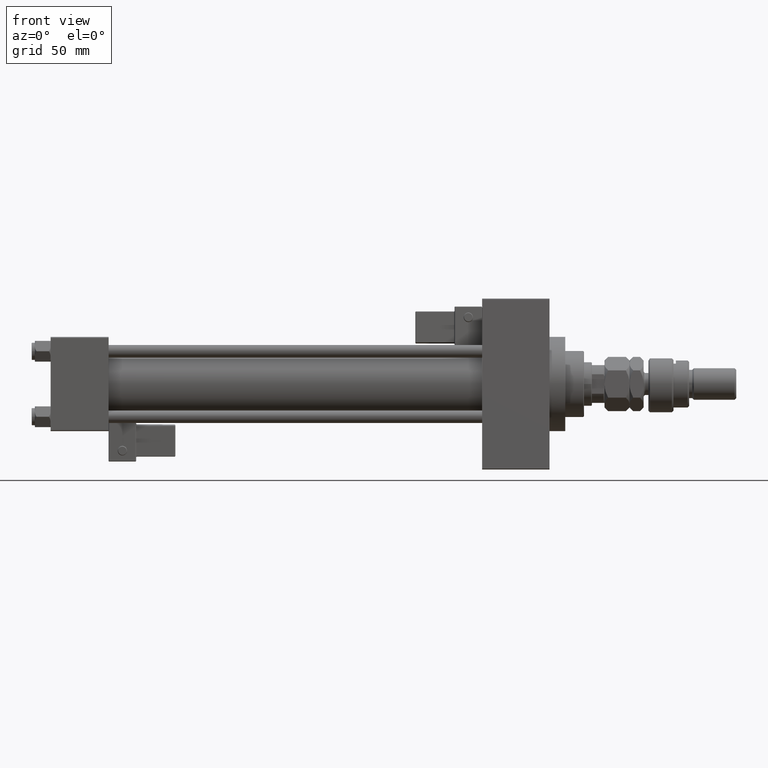
[diagram: clean part render]
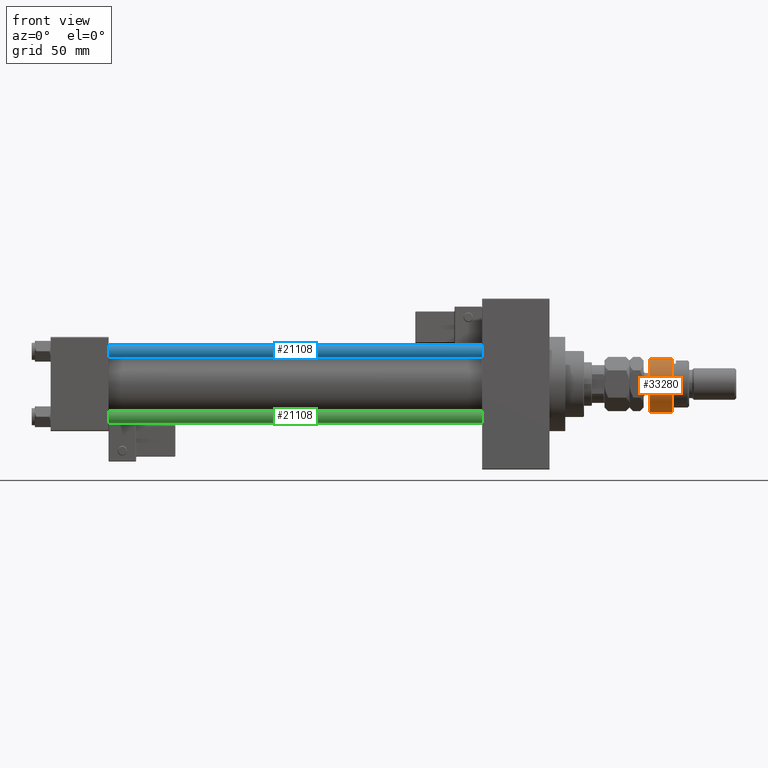
[diagram: same view with three faces highlighted in distinct colors, each labeled with its STEP entity id]
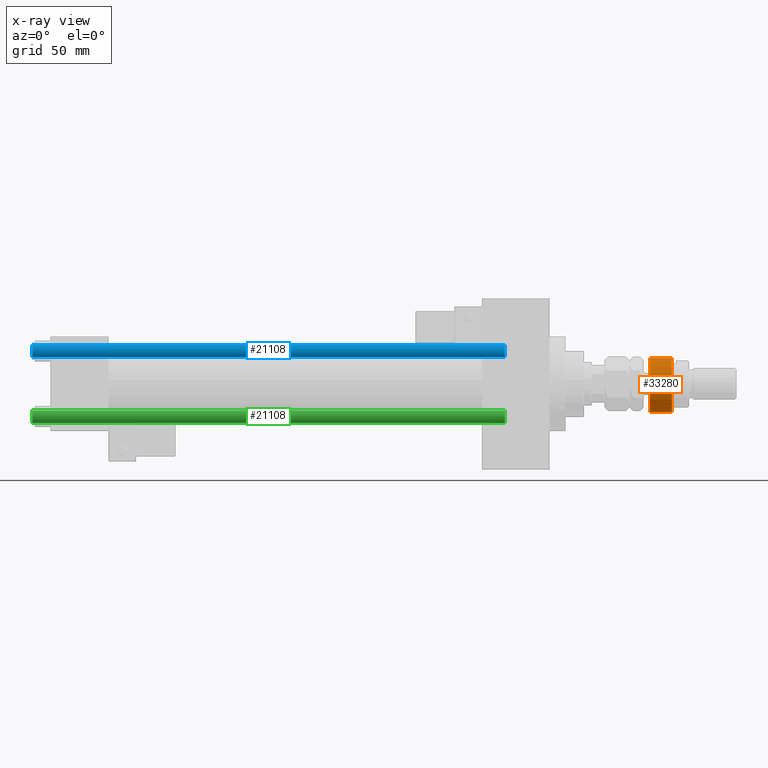
[diagram: x-ray of the same camera — body ghosted, the three highlighted faces saturated]
A machine part, front view with three faces highlighted in distinct colors.
The next image is the same camera in x-ray (body ghosted, the three faces saturated) — at least one of them is partly hidden behind the body in this view.
Their STEP definitions:

[orange] entity #33280 — the highlighted cylindrical surface (edge-blend (fillet) strip) has radius 18 mm, axis along (-1, -0, 0).
#487 = DIRECTION ( 'NONE',  ( -0.000000000000000000, -0.000000000000000000, 1.000000000000000000 ) ) ;
#1001 = CARTESIAN_POINT ( 'NONE',  ( 0.000000000000000000, 0.000000000000000000, 1.000000000000011324 ) ) ;
#2373 = ORIENTED_EDGE ( 'NONE', *, *, #43008, .T. ) ;
#3588 = DIRECTION ( 'NONE',  ( 1.000000000000000000, 0.000000000000000000, 0.000000000000000000 ) ) ;
#3994 = VERTEX_POINT ( 'NONE', #5558 ) ;
#4075 = LINE ( 'NONE', #52472, #25803 ) ;
#5335 = DIRECTION ( 'NONE',  ( -0.000000000000000000, -0.000000000000000000, -1.000000000000000000 ) ) ;
#5377 = CARTESIAN_POINT ( 'NONE',  ( 0.000000000000000000, 0.000000000000000000, 1.000000000000011324 ) ) ;
#5558 = CARTESIAN_POINT ( 'NONE',  ( -16.36306817195357155, 7.500000000000000000, 1.000000000000011324 ) ) ;
#7067 = CARTESIAN_POINT ( 'NONE',  ( 0.000000000000000000, 0.000000000000000000, 14.99999999999999645 ) ) ;
#7327 = DIRECTION ( 'NONE',  ( 0.000000000000000000, 0.000000000000000000, -1.000000000000000000 ) ) ;
#7967 = CARTESIAN_POINT ( 'NONE',  ( -16.36306817195357155, 7.500000000000000000, 14.99999999999999645 ) ) ;
#10389 = CARTESIAN_POINT ( 'NONE',  ( -16.36306817195357155, -7.500000000000000000, 1.000000000000011324 ) ) ;
#13651 = EDGE_CURVE ( 'NONE', #38597, #3994, #4075, .T. ) ;
#14104 = ORIENTED_EDGE ( 'NONE', *, *, #26042, .T. ) ;
#14945 = CIRCLE ( 'NONE', #48932, 18.00000000000000000 ) ;
#15022 = VECTOR ( 'NONE', #25085, 1000.000000000000000 ) ;
#17640 = LINE ( 'NONE', #25870, #15022 ) ;
#18761 = ORIENTED_EDGE ( 'NONE', *, *, #22745, .T. ) ;
#22331 = AXIS2_PLACEMENT_3D ( 'NONE', #29564, #5335, #37787 ) ;
#22416 = DIRECTION ( 'NONE',  ( -0.000000000000000000, -0.000000000000000000, 1.000000000000000000 ) ) ;
#22745 = EDGE_CURVE ( 'NONE', #27725, #28508, #17640, .T. ) ;
#23485 = CIRCLE ( 'NONE', #29413, 18.00000000000000000 ) ;
#23782 = DIRECTION ( 'NONE',  ( -0.000000000000000000, -0.000000000000000000, -1.000000000000000000 ) ) ;
#25085 = DIRECTION ( 'NONE',  ( -0.000000000000000000, -0.000000000000000000, -1.000000000000000000 ) ) ;
#25183 = CARTESIAN_POINT ( 'NONE',  ( -16.36306817195357155, -7.500000000000000000, 14.99999999999999645 ) ) ;
#25803 = VECTOR ( 'NONE', #23782, 1000.000000000000000 ) ;
#25870 = CARTESIAN_POINT ( 'NONE',  ( -16.36306817195357155, -7.500000000000000000, 17.50000000000000000 ) ) ;
#26042 = EDGE_CURVE ( 'NONE', #34195, #3994, #35483, .T. ) ;
#27725 = VERTEX_POINT ( 'NONE', #25183 ) ;
#28508 = VERTEX_POINT ( 'NONE', #10389 ) ;
#29413 = AXIS2_PLACEMENT_3D ( 'NONE', #5377, #22416, #46051 ) ;
#29564 = CARTESIAN_POINT ( 'NONE',  ( 0.000000000000000000, 0.000000000000000000, 16.00000000000000000 ) ) ;
#31082 = CARTESIAN_POINT ( 'NONE',  ( 18.00000000000000000, 0.000000000000000000, 1.000000000000011324 ) ) ;
#33280 = ADVANCED_FACE ( 'NONE', ( #33534 ), #49751, .T. ) ;
#33534 = FACE_OUTER_BOUND ( 'NONE', #36851, .T. ) ;
#34195 = VERTEX_POINT ( 'NONE', #31082 ) ;
#35080 = ORIENTED_EDGE ( 'NONE', *, *, #13651, .F. ) ;
#35483 = CIRCLE ( 'NONE', #46580, 18.00000000000000000 ) ;
#36851 = EDGE_LOOP ( 'NONE', ( #35080, #2373, #18761, #41083, #14104 ) ) ;
#37787 = DIRECTION ( 'NONE',  ( -1.000000000000000000, 0.000000000000000000, 0.000000000000000000 ) ) ;
#38597 = VERTEX_POINT ( 'NONE', #7967 ) ;
#41083 = ORIENTED_EDGE ( 'NONE', *, *, #43400, .T. ) ;
#43008 = EDGE_CURVE ( 'NONE', #38597, #27725, #14945, .T. ) ;
#43400 = EDGE_CURVE ( 'NONE', #28508, #34195, #23485, .T. ) ;
#45926 = DIRECTION ( 'NONE',  ( 1.000000000000000000, 0.000000000000000000, 0.000000000000000000 ) ) ;
#46051 = DIRECTION ( 'NONE',  ( 1.000000000000000000, 0.000000000000000000, 0.000000000000000000 ) ) ;
#46580 = AXIS2_PLACEMENT_3D ( 'NONE', #1001, #487, #45926 ) ;
#48932 = AXIS2_PLACEMENT_3D ( 'NONE', #7067, #7327, #3588 ) ;
#49751 = CYLINDRICAL_SURFACE ( 'NONE', #22331, 18.00000000000000000 ) ;
#52472 = CARTESIAN_POINT ( 'NONE',  ( -16.36306817195357155, 7.500000000000000000, 17.50000000000000000 ) ) ;

[blue] entity #21108 — the highlighted cylindrical surface (edge-blend (fillet) strip) has radius 4 mm, axis along (1, 0, 0).
#473 = VECTOR ( 'NONE', #43873, 1000.000000000000000 ) ;
#845 = EDGE_CURVE ( 'NONE', #14993, #40139, #36478, .T. ) ;
#3273 = CARTESIAN_POINT ( 'NONE',  ( -4.000000000000000000, 0.000000000000000000, 0.5000000000000559552 ) ) ;
#3393 = CARTESIAN_POINT ( 'NONE',  ( 0.000000000000000000, 0.000000000000000000, 302.0000000000000000 ) ) ;
#4063 = AXIS2_PLACEMENT_3D ( 'NONE', #31059, #26272, #16391 ) ;
#7391 = FACE_OUTER_BOUND ( 'NONE', #38830, .T. ) ;
#7750 = ORIENTED_EDGE ( 'NONE', *, *, #47013, .T. ) ;
#8879 = CARTESIAN_POINT ( 'NONE',  ( 0.000000000000000000, 0.000000000000000000, 0.5000000000000559552 ) ) ;
#10535 = EDGE_CURVE ( 'NONE', #43142, #40139, #25649, .T. ) ;
#11747 = CARTESIAN_POINT ( 'NONE',  ( -4.000000000000000000, 0.000000000000000000, 301.4999999999999432 ) ) ;
#14993 = VERTEX_POINT ( 'NONE', #11747 ) ;
#15427 = CARTESIAN_POINT ( 'NONE',  ( 4.000000000000000000, 4.898587196589412829E-16, 302.0000000000000000 ) ) ;
#16024 = CARTESIAN_POINT ( 'NONE',  ( -4.000000000000000000, 0.000000000000000000, 302.0000000000000000 ) ) ;
#16391 = DIRECTION ( 'NONE',  ( 1.000000000000000000, 0.000000000000000000, 0.000000000000000000 ) ) ;
#16486 = LINE ( 'NONE', #15427, #473 ) ;
#20867 = AXIS2_PLACEMENT_3D ( 'NONE', #3393, #35828, #52050 ) ;
#21108 = ADVANCED_FACE ( 'NONE', ( #7391 ), #23639, .T. ) ;
#22846 = CARTESIAN_POINT ( 'NONE',  ( 4.000000000000000000, 4.898587196589412829E-16, 301.4999999999999432 ) ) ;
#23639 = CYLINDRICAL_SURFACE ( 'NONE', #20867, 4.000000000000000000 ) ;
#25649 = CIRCLE ( 'NONE', #42643, 4.000000000000000000 ) ;
#26272 = DIRECTION ( 'NONE',  ( 0.000000000000000000, 0.000000000000000000, -1.000000000000000000 ) ) ;
#27572 = VERTEX_POINT ( 'NONE', #22846 ) ;
#28338 = CARTESIAN_POINT ( 'NONE',  ( 4.000000000000000000, 4.898587196589412829E-16, 0.5000000000000559552 ) ) ;
#30689 = ORIENTED_EDGE ( 'NONE', *, *, #38622, .T. ) ;
#31059 = CARTESIAN_POINT ( 'NONE',  ( 0.000000000000000000, 0.000000000000000000, 301.4999999999999432 ) ) ;
#31702 = ORIENTED_EDGE ( 'NONE', *, *, #10535, .T. ) ;
#32237 = DIRECTION ( 'NONE',  ( -0.000000000000000000, -0.000000000000000000, -1.000000000000000000 ) ) ;
#35828 = DIRECTION ( 'NONE',  ( -0.000000000000000000, -0.000000000000000000, -1.000000000000000000 ) ) ;
#36325 = CIRCLE ( 'NONE', #4063, 4.000000000000000000 ) ;
#36478 = LINE ( 'NONE', #16024, #37661 ) ;
#37661 = VECTOR ( 'NONE', #32237, 1000.000000000000000 ) ;
#38622 = EDGE_CURVE ( 'NONE', #27572, #43142, #16486, .T. ) ;
#38830 = EDGE_LOOP ( 'NONE', ( #7750, #30689, #31702, #45877 ) ) ;
#40139 = VERTEX_POINT ( 'NONE', #3273 ) ;
#42643 = AXIS2_PLACEMENT_3D ( 'NONE', #8879, #49293, #45308 ) ;
#43142 = VERTEX_POINT ( 'NONE', #28338 ) ;
#43873 = DIRECTION ( 'NONE',  ( -0.000000000000000000, -0.000000000000000000, -1.000000000000000000 ) ) ;
#45308 = DIRECTION ( 'NONE',  ( 1.000000000000000000, 0.000000000000000000, 0.000000000000000000 ) ) ;
#45877 = ORIENTED_EDGE ( 'NONE', *, *, #845, .F. ) ;
#47013 = EDGE_CURVE ( 'NONE', #14993, #27572, #36325, .T. ) ;
#49293 = DIRECTION ( 'NONE',  ( -0.000000000000000000, -0.000000000000000000, 1.000000000000000000 ) ) ;
#52050 = DIRECTION ( 'NONE',  ( -1.000000000000000000, 0.000000000000000000, 0.000000000000000000 ) ) ;

[green] entity #21108 — the highlighted cylindrical surface (edge-blend (fillet) strip) has radius 4 mm, axis along (-1, 0, 0).
#473 = VECTOR ( 'NONE', #43873, 1000.000000000000000 ) ;
#845 = EDGE_CURVE ( 'NONE', #14993, #40139, #36478, .T. ) ;
#3273 = CARTESIAN_POINT ( 'NONE',  ( -4.000000000000000000, 0.000000000000000000, 0.5000000000000559552 ) ) ;
#3393 = CARTESIAN_POINT ( 'NONE',  ( 0.000000000000000000, 0.000000000000000000, 302.0000000000000000 ) ) ;
#4063 = AXIS2_PLACEMENT_3D ( 'NONE', #31059, #26272, #16391 ) ;
#7391 = FACE_OUTER_BOUND ( 'NONE', #38830, .T. ) ;
#7750 = ORIENTED_EDGE ( 'NONE', *, *, #47013, .T. ) ;
#8879 = CARTESIAN_POINT ( 'NONE',  ( 0.000000000000000000, 0.000000000000000000, 0.5000000000000559552 ) ) ;
#10535 = EDGE_CURVE ( 'NONE', #43142, #40139, #25649, .T. ) ;
#11747 = CARTESIAN_POINT ( 'NONE',  ( -4.000000000000000000, 0.000000000000000000, 301.4999999999999432 ) ) ;
#14993 = VERTEX_POINT ( 'NONE', #11747 ) ;
#15427 = CARTESIAN_POINT ( 'NONE',  ( 4.000000000000000000, 4.898587196589412829E-16, 302.0000000000000000 ) ) ;
#16024 = CARTESIAN_POINT ( 'NONE',  ( -4.000000000000000000, 0.000000000000000000, 302.0000000000000000 ) ) ;
#16391 = DIRECTION ( 'NONE',  ( 1.000000000000000000, 0.000000000000000000, 0.000000000000000000 ) ) ;
#16486 = LINE ( 'NONE', #15427, #473 ) ;
#20867 = AXIS2_PLACEMENT_3D ( 'NONE', #3393, #35828, #52050 ) ;
#21108 = ADVANCED_FACE ( 'NONE', ( #7391 ), #23639, .T. ) ;
#22846 = CARTESIAN_POINT ( 'NONE',  ( 4.000000000000000000, 4.898587196589412829E-16, 301.4999999999999432 ) ) ;
#23639 = CYLINDRICAL_SURFACE ( 'NONE', #20867, 4.000000000000000000 ) ;
#25649 = CIRCLE ( 'NONE', #42643, 4.000000000000000000 ) ;
#26272 = DIRECTION ( 'NONE',  ( 0.000000000000000000, 0.000000000000000000, -1.000000000000000000 ) ) ;
#27572 = VERTEX_POINT ( 'NONE', #22846 ) ;
#28338 = CARTESIAN_POINT ( 'NONE',  ( 4.000000000000000000, 4.898587196589412829E-16, 0.5000000000000559552 ) ) ;
#30689 = ORIENTED_EDGE ( 'NONE', *, *, #38622, .T. ) ;
#31059 = CARTESIAN_POINT ( 'NONE',  ( 0.000000000000000000, 0.000000000000000000, 301.4999999999999432 ) ) ;
#31702 = ORIENTED_EDGE ( 'NONE', *, *, #10535, .T. ) ;
#32237 = DIRECTION ( 'NONE',  ( -0.000000000000000000, -0.000000000000000000, -1.000000000000000000 ) ) ;
#35828 = DIRECTION ( 'NONE',  ( -0.000000000000000000, -0.000000000000000000, -1.000000000000000000 ) ) ;
#36325 = CIRCLE ( 'NONE', #4063, 4.000000000000000000 ) ;
#36478 = LINE ( 'NONE', #16024, #37661 ) ;
#37661 = VECTOR ( 'NONE', #32237, 1000.000000000000000 ) ;
#38622 = EDGE_CURVE ( 'NONE', #27572, #43142, #16486, .T. ) ;
#38830 = EDGE_LOOP ( 'NONE', ( #7750, #30689, #31702, #45877 ) ) ;
#40139 = VERTEX_POINT ( 'NONE', #3273 ) ;
#42643 = AXIS2_PLACEMENT_3D ( 'NONE', #8879, #49293, #45308 ) ;
#43142 = VERTEX_POINT ( 'NONE', #28338 ) ;
#43873 = DIRECTION ( 'NONE',  ( -0.000000000000000000, -0.000000000000000000, -1.000000000000000000 ) ) ;
#45308 = DIRECTION ( 'NONE',  ( 1.000000000000000000, 0.000000000000000000, 0.000000000000000000 ) ) ;
#45877 = ORIENTED_EDGE ( 'NONE', *, *, #845, .F. ) ;
#47013 = EDGE_CURVE ( 'NONE', #14993, #27572, #36325, .T. ) ;
#49293 = DIRECTION ( 'NONE',  ( -0.000000000000000000, -0.000000000000000000, 1.000000000000000000 ) ) ;
#52050 = DIRECTION ( 'NONE',  ( -1.000000000000000000, 0.000000000000000000, 0.000000000000000000 ) ) ;